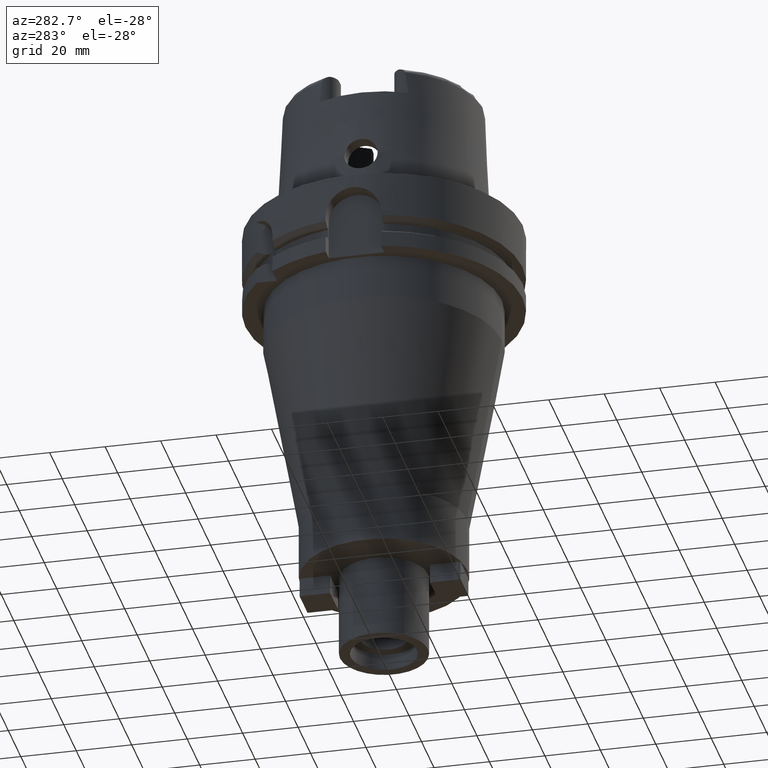
[diagram: clean part render]
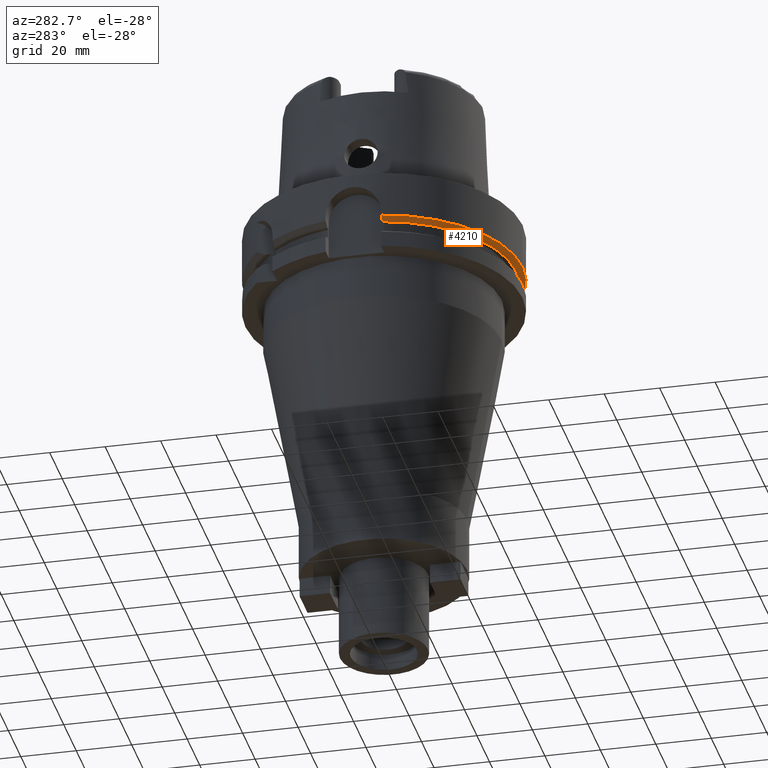
[diagram: same view with one face highlighted and labeled with its STEP entity id]
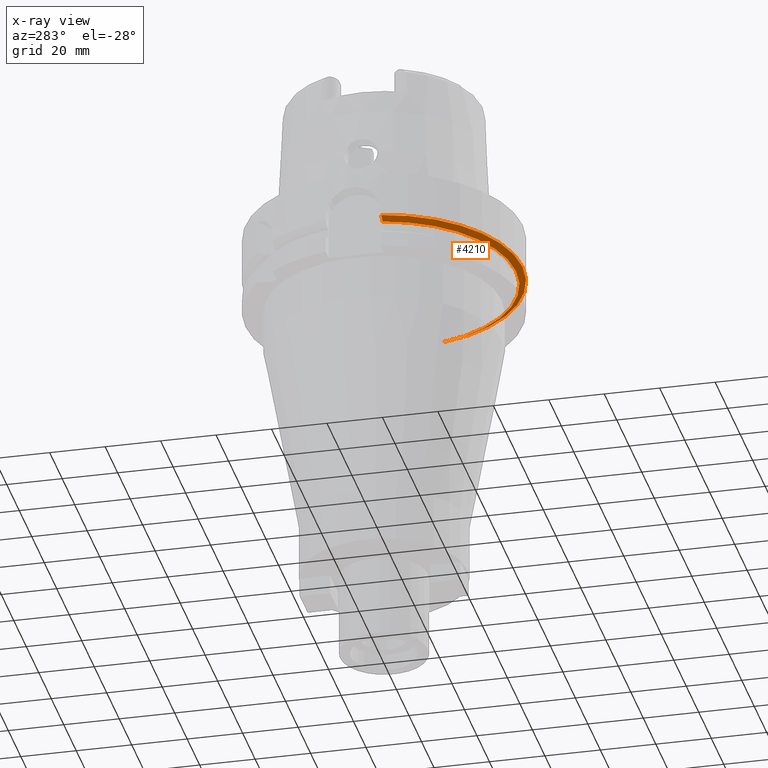
[diagram: x-ray of the same camera — body ghosted, the highlighted face saturated]
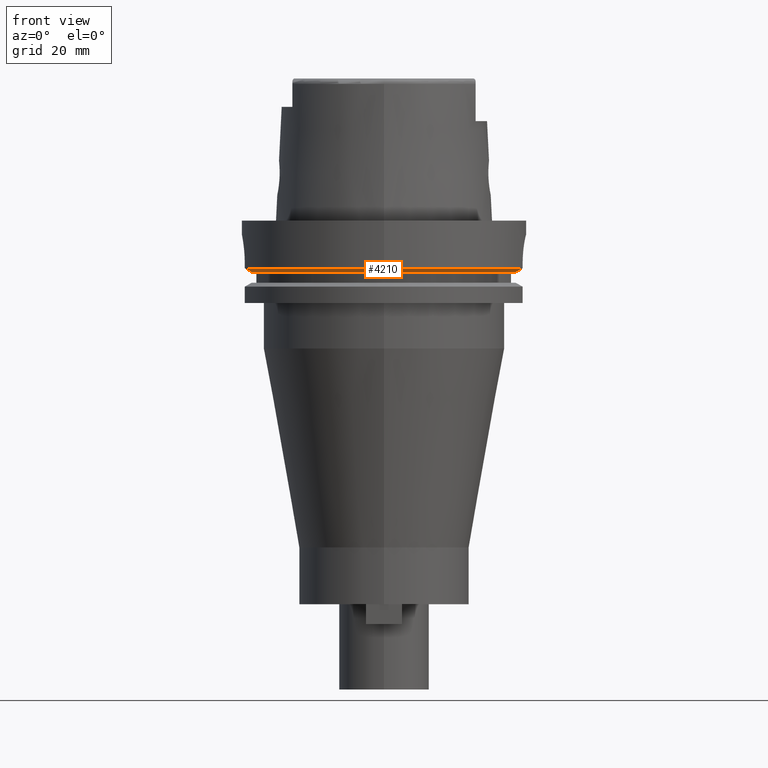
[diagram: same view with one face highlighted and labeled with its STEP entity id]
A machine part, auxiliary view. The second image highlights one B-rep face of the part: STEP entity #4210.
The next image is the same camera in x-ray: the body ghosted, the highlighted face saturated — about 4% of this face is hidden behind the body in this view.
A second angle (front view) of the same face is appended — the face is thin or edge-on in the first view.
In plain terms, the highlighted conical surface has half-angle 60 deg.
Its self-contained STEP definition (entity closure, byte-faithful):
#1867=CARTESIAN_POINT('',(-4.656083740330E1,-1.E1,-1.8125E1));
#1868=CARTESIAN_POINT('',(-4.683084020607E1,-1.E1,-1.797258933137E1));
#1869=CARTESIAN_POINT('',(-4.737076227628E1,-1.E1,-1.766769351207E1));
#1870=CARTESIAN_POINT('',(-4.818041161677E1,-1.E1,-1.721015586611E1));
#1871=CARTESIAN_POINT('',(-4.872002593967E1,-1.E1,-1.690500907969E1));
#1872=CARTESIAN_POINT('',(-4.898979485566E1,-1.E1,-1.675240473581E1));
#1877=CARTESIAN_POINT('',(0.E0,0.E0,-1.675240473581E1));
#1878=DIRECTION('',(0.E0,0.E0,1.E0));
#1879=DIRECTION('',(-9.797958971133E-1,-2.E-1,0.E0));
#1880=AXIS2_PLACEMENT_3D('',#1877,#1878,#1879);
#1885=CARTESIAN_POINT('',(0.E0,0.E0,-1.675240473581E1));
#1886=DIRECTION('',(0.E0,0.E0,1.E0));
#1887=DIRECTION('',(0.E0,-1.E0,0.E0));
#1888=AXIS2_PLACEMENT_3D('',#1885,#1886,#1887);
#1893=CARTESIAN_POINT('',(4.877499359303E1,-1.1E1,-1.675240473581E1));
#1894=CARTESIAN_POINT('',(4.850399904748E1,-1.1E1,-1.690503024962E1));
#1895=CARTESIAN_POINT('',(4.796191616323E1,-1.1E1,-1.721020456770E1));
#1896=CARTESIAN_POINT('',(4.714851446810E1,-1.1E1,-1.766774350267E1));
#1897=CARTESIAN_POINT('',(4.660605711265E1,-1.1E1,-1.797261191789E1));
#1898=CARTESIAN_POINT('',(4.633477721644E1,-1.1E1,-1.8125E1));
#1910=CARTESIAN_POINT('',(0.E0,0.E0,-1.8125E1));
#1911=DIRECTION('',(0.E0,0.E0,1.E0));
#1912=DIRECTION('',(-9.777047459300E-1,-2.099843560504E-1,0.E0));
#1913=AXIS2_PLACEMENT_3D('',#1910,#1911,#1912);
#1918=CARTESIAN_POINT('',(0.E0,0.E0,-1.8125E1));
#1919=DIRECTION('',(0.E0,0.E0,1.E0));
#1920=DIRECTION('',(0.E0,-1.E0,0.E0));
#1921=AXIS2_PLACEMENT_3D('',#1918,#1919,#1920);
#2691=CARTESIAN_POINT('',(-4.898979485566E1,-1.E1,-1.675240473581E1));
#2692=VERTEX_POINT('',#2691);
#2693=VERTEX_POINT('',#1867);
#2742=CARTESIAN_POINT('',(-1.598721155460E-14,-4.762259526419E1,-1.8125E1));
#2743=CARTESIAN_POINT('',(4.633477721644E1,-1.1E1,-1.8125E1));
#2744=VERTEX_POINT('',#2742);
#2745=VERTEX_POINT('',#2743);
#2752=CARTESIAN_POINT('',(0.E0,-5.E1,-1.675240473581E1));
#2753=VERTEX_POINT('',#2752);
#2754=CARTESIAN_POINT('',(4.877499359303E1,-1.1E1,-1.675240473581E1));
#2755=VERTEX_POINT('',#2754);
#4195=CARTESIAN_POINT('',(0.E0,0.E0,-1.743870236790E1));
#4196=DIRECTION('',(0.E0,0.E0,1.E0));
#4197=DIRECTION('',(0.E0,1.E0,0.E0));
#4198=AXIS2_PLACEMENT_3D('',#4195,#4196,#4197);
#4199=CONICAL_SURFACE('',#4198,4.881129763209E1,6.E1);
#4200=ORIENTED_EDGE('',*,*,#3921,.T.);
#4201=ORIENTED_EDGE('',*,*,#4042,.T.);
#4202=ORIENTED_EDGE('',*,*,#4144,.T.);
#4203=ORIENTED_EDGE('',*,*,#3882,.T.);
#4205=ORIENTED_EDGE('',*,*,#4204,.F.);
#4207=ORIENTED_EDGE('',*,*,#4206,.F.);
#4208=EDGE_LOOP('',(#4200,#4201,#4202,#4203,#4205,#4207));
#4209=FACE_OUTER_BOUND('',#4208,.F.);
#1873=B_SPLINE_CURVE_WITH_KNOTS('',3,(#1867,#1868,#1869,#1870,#1871,#1872),
.UNSPECIFIED.,.F.,.F.,(4,1,1,4),(0.E0,3.333333333333E-1,6.666666666667E-1,1.E0),
.UNSPECIFIED.);
#1881=CIRCLE('',#1880,5.E1);
#1889=CIRCLE('',#1888,5.E1);
#1899=B_SPLINE_CURVE_WITH_KNOTS('',3,(#1893,#1894,#1895,#1896,#1897,#1898),
.UNSPECIFIED.,.F.,.F.,(4,1,1,4),(0.E0,3.333333333333E-1,6.666666666667E-1,1.E0),
.UNSPECIFIED.);
#1914=CIRCLE('',#1913,4.762259526419E1);
#1922=CIRCLE('',#1921,4.762259526419E1);
#3882=EDGE_CURVE('',#2755,#2745,#1899,.T.);
#3921=EDGE_CURVE('',#2693,#2692,#1873,.T.);
#4042=EDGE_CURVE('',#2692,#2753,#1881,.T.);
#4144=EDGE_CURVE('',#2753,#2755,#1889,.T.);
#4204=EDGE_CURVE('',#2744,#2745,#1922,.T.);
#4206=EDGE_CURVE('',#2693,#2744,#1914,.T.);
#4210=ADVANCED_FACE('',(#4209),#4199,.T.);